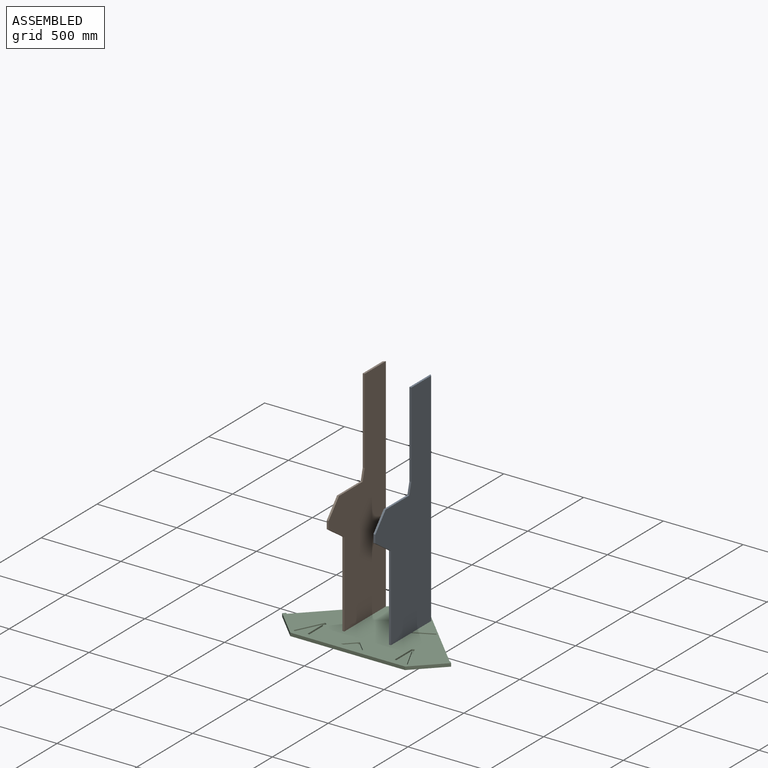
[diagram: assembled view]
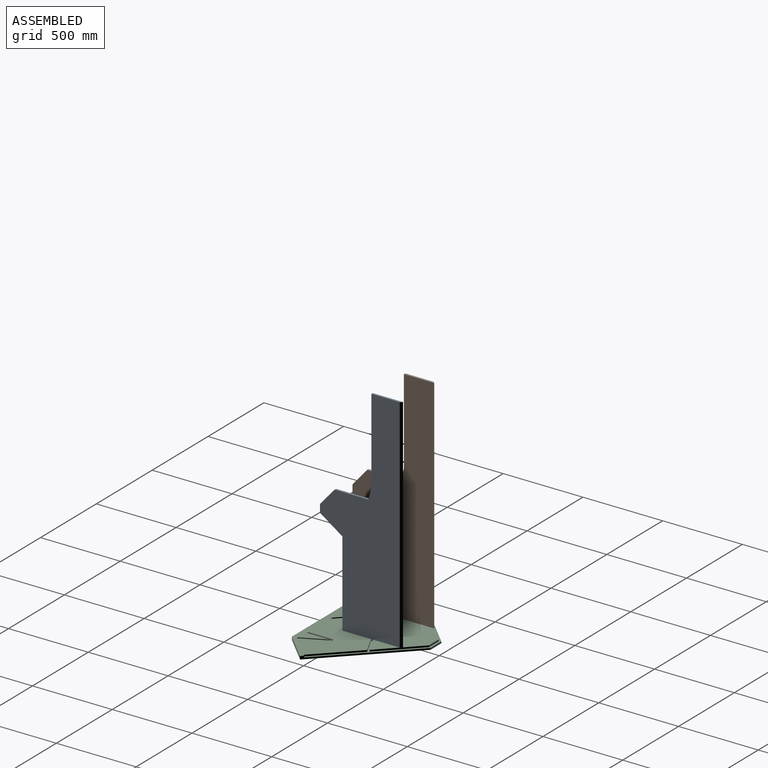
[diagram: assembled view, second angle]
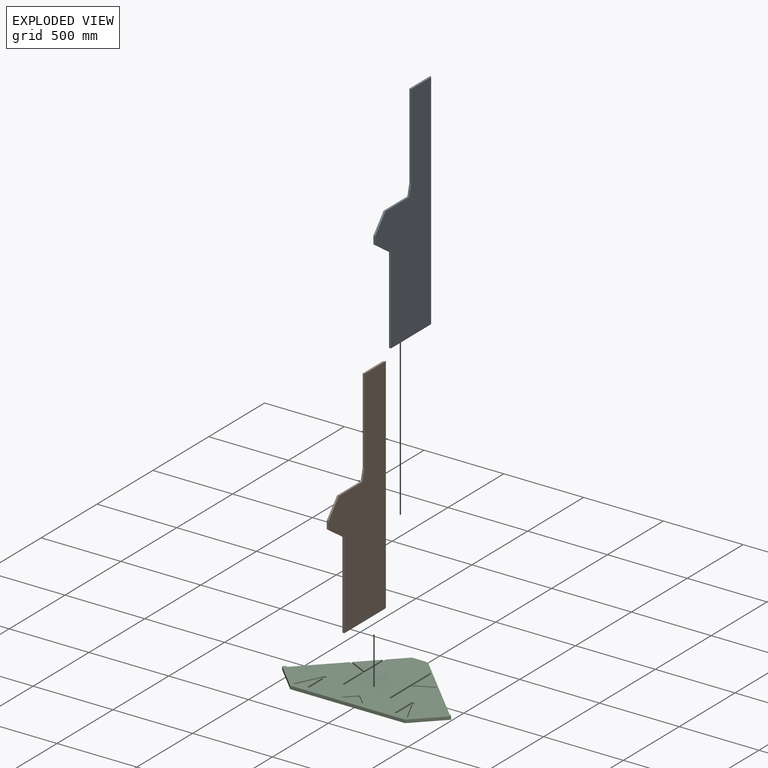
[diagram: exploded view]
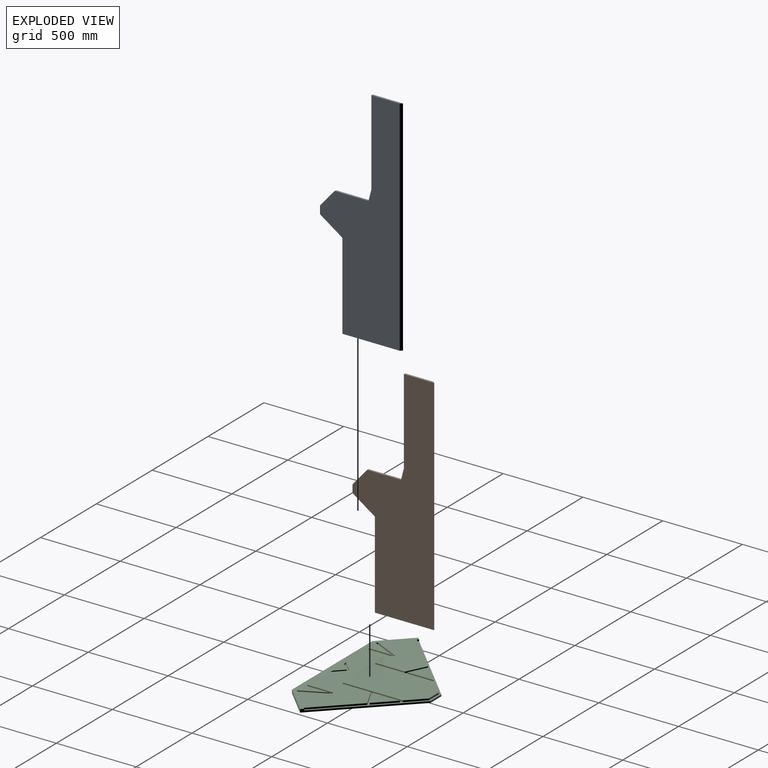
[diagram: exploded view, second angle]
ASSEMBLY  parts=3 mates=2
PART A: 12 faces, bbox 12x1400x512 mm
  f0: plane 190x12mm, normal (0,-1,0), area 2208mm2, adj f1,f9,f10,f11
  f1: plane 534x12mm, normal (0,0,-1), area 6408mm2, adj f0,f2,f9,f10
  f2: plane 70x18mm, normal (0,-0.25,-0.97), area 867.3mm2, adj f1,f3,f9,f10
  f3: plane 212x12mm, normal (0,-1,0), area 2544mm2, adj f2,f4,f9,f10
  f4: plane 106x92mm, normal (0,-0.66,-0.76), area 1684.3mm2, adj f3,f5,f9,f10
  f5: plane 50x12mm, normal (0,0,-1), area 600mm2, adj f4,f6,f9,f10
  f6: plane 140x96mm, normal (0,0.82,-0.57), area 2037mm2, adj f5,f7,f9,f10
  f7: plane 544x12mm, normal (0,0,-1), area 6528mm2, adj f6,f8,f9,f10
  f8: plane 372x12mm, normal (0,1,0), area 4392mm2, adj f7,f9,f10,f11
  f9: plane 1400x500mm, normal (1,0,0), area 418386mm2, adj f0,f1,f2,f3,f4,f5,f6,f7
  f10: plane 1400x512mm, normal (-1,0,0), area 435186mm2, adj f0,f1,f2,f3,f4,f5,f6,f7
  f11: plane 1400x12mm, normal (0.71,0,0.71), area 23758.8mm2, adj f0,f8,f9,f10
PART B: 12 faces, bbox 12x1400x512 mm
  f0: plane 70x18mm, normal (0,-0.25,0.97), area 867.3mm2, adj f1,f8,f9,f10
  f1: plane 534x12mm, normal (0,0,1), area 6408mm2, adj f0,f2,f9,f10
  f2: plane 190x12mm, normal (0,-1,0), area 2208mm2, adj f1,f9,f10,f11
  f3: plane 372x12mm, normal (0,1,0), area 4392mm2, adj f4,f9,f10,f11
  f4: plane 544x12mm, normal (0,0,1), area 6528mm2, adj f3,f5,f9,f10
  f5: plane 140x96mm, normal (0,0.82,0.57), area 2037mm2, adj f4,f6,f9,f10
  f6: plane 50x12mm, normal (0,0,1), area 600mm2, adj f5,f7,f9,f10
  f7: plane 106x92mm, normal (0,-0.66,0.76), area 1684.3mm2, adj f6,f8,f9,f10
  f8: plane 212x12mm, normal (0,-1,0), area 2544mm2, adj f0,f7,f9,f10
  f9: plane 1400x500mm, normal (1,0,0), area 418386mm2, adj f0,f1,f2,f3,f4,f5,f6,f7
  f10: plane 1400x512mm, normal (-1,0,0), area 435186mm2, adj f0,f1,f2,f3,f4,f5,f6,f7
  f11: plane 1400x12mm, normal (0.71,0,-0.71), area 23758.8mm2, adj f2,f3,f9,f10
PART C: 55 faces, bbox 1059.4x650.5x20 mm
  f0: plane 372x10mm, normal (-1,0,0), area 3720mm2, adj f1,f39,f40,f50
  f1: plane 12x10mm, normal (0,1,0), area 120mm2, adj f0,f2,f40,f50
  f2: plane 180x10mm, normal (1,0,0), area 1800mm2, adj f1,f3,f40,f50
  f3: plane 120.44x60mm, normal (0.45,0.9,0), area 1345.6mm2, adj f2,f4,f40,f50
  f4: plane 233.22x233.22mm, normal (-0.71,0.71,0), area 3298.3mm2, adj f3,f5,f40,f50
  f5: plane 10x8.49mm, normal (0.71,0.71,0), area 120mm2, adj f4,f6,f40,f50
  f6: plane 480.83x480.83mm, normal (-0.71,0.71,0), area 7020mm2, adj f5,f7,f40,f41,f49,f50
  f7: plane 169.71x169.71mm, normal (-0.71,-0.71,0), area 4800mm2, adj f6,f8,f40,f41
  f8: plane 720x20mm, normal (0,-1,0), area 14400mm2, adj f7,f9,f40,f41
  f9: plane 169.71x169.71mm, normal (0.71,-0.71,0), area 4800mm2, adj f8,f10,f40,f41
  f10: plane 480.83x480.83mm, normal (0.71,0.71,0), area 7020mm2, adj f9,f11,f40,f41,f49,f50
  f11: plane 10x8.49mm, normal (-0.71,0.71,0), area 120mm2, adj f10,f12,f40,f50
  f12: plane 233.66x233.22mm, normal (0.71,0.71,0), area 3301.4mm2, adj f11,f13,f40,f50
  f13: plane 120.44x60mm, normal (-0.45,0.9,0), area 1345.6mm2, adj f12,f14,f40,f50
  f14: plane 180x10mm, normal (-1,0,0), area 1800mm2, adj f13,f15,f40,f50
  f15: plane 12x10mm, normal (0,1,0), area 120mm2, adj f14,f16,f40,f50
  f16: plane 372x10mm, normal (1,0,0), area 3720mm2, adj f15,f17,f40,f50
  f17: plane 96.1x95.66mm, normal (0.71,0.71,0), area 1355.9mm2, adj f16,f18,f40,f50
  f18: plane 87.81x10mm, normal (0,1,0), area 878mm2, adj f17,f39,f40,f50
  f19: plane 154.39x10mm, normal (-1,0,0), area 1543.9mm2, adj f20,f36,f40,f44
  f20: plane 12x10mm, normal (0,1,0), area 120mm2, adj f19,f21,f40,f44
  f21: plane 138.78x10mm, normal (1,0,0), area 1387.8mm2, adj f20,f22,f40,f44
  f22: plane 148.78x73mm, normal (-0.9,0.44,0), area 1657.2mm2, adj f21,f23,f40,f44
  f23: plane 10.77x10mm, normal (0.44,0.9,0), area 120mm2, adj f22,f24,f40,f44
  f24: plane 166.1x81.5mm, normal (0.9,-0.44,0), area 1850.2mm2, adj f23,f36,f40,f44
  f25: plane 70x70mm, normal (-0.71,-0.71,0), area 989.9mm2, adj f26,f37,f40,f43
  f26: plane 16.97x10mm, normal (0,1,0), area 169.7mm2, adj f25,f27,f40,f43
  f27: plane 53x53mm, normal (0.71,0.71,0), area 749.5mm2, adj f26,f28,f40,f43
  f28: plane 53x53mm, normal (-0.71,0.71,0), area 749.5mm2, adj f27,f29,f40,f43
  f29: plane 17.03x10mm, normal (0,1,0), area 170.3mm2, adj f28,f37,f40,f43
  f30: plane 10.77x10mm, normal (-0.44,0.9,0), area 120mm2, adj f31,f38,f40,f42
  f31: plane 148.78x73mm, normal (0.9,0.44,0), area 1657.2mm2, adj f30,f32,f40,f42
  f32: plane 138.78x10mm, normal (-1,0,0), area 1387.8mm2, adj f31,f33,f40,f42
  f33: plane 12x10mm, normal (0,1,0), area 120mm2, adj f32,f34,f40,f42
  f34: plane 154.39x10mm, normal (1,0,0), area 1543.9mm2, adj f33,f35,f40,f42
  f35: plane 14.27x10mm, normal (0.44,-0.9,0), area 159mm2, adj f34,f38,f40,f42
  f36: plane 14.27x10mm, normal (-0.44,-0.9,0), area 159mm2, adj f19,f24,f40,f44
  f37: plane 70x70mm, normal (0.71,-0.71,0), area 989.9mm2, adj f25,f29,f40,f43
  f38: plane 166.1x81.5mm, normal (-0.9,-0.44,0), area 1850.2mm2, adj f30,f35,f40,f42
  f39: plane 96.1x96.1mm, normal (-0.71,0.71,0), area 1359mm2, adj f0,f18,f40,f50
  f40: plane 1059.41x638.1mm, normal (0,0,1), area 371697.8mm2, adj f0,f1,f2,f3,f4,f5,f6,f7
  f41: plane 1059.41x650.54mm, normal (0,0,-1), area 429187.5mm2, adj f6,f7,f8,f9,f10,f49
  f42: plane 171.39x95.77mm, normal (0,0,1), area 4016.8mm2, adj f30,f31,f32,f33,f34,f35,f38
  f43: plane 140x70mm, normal (0,0,1), area 2091mm2, adj f25,f26,f27,f28,f29,f37
  f44: plane 171.39x95.77mm, normal (0,0,1), area 4016.8mm2, adj f19,f20,f21,f22,f23,f24,f36
  f45: plane 111.49x111.49mm, normal (-0.71,0.71,0), area 1576.7mm2, adj f46,f47,f48,f50
  f46: plane 111.49x55.54mm, normal (-0.45,-0.9,0), area 1245.6mm2, adj f45,f47,f48,f50
  f47: plane 167.03x10mm, normal (1,0,0), area 1670.3mm2, adj f45,f46,f48,f50
  f48: plane 167.03x111.49mm, normal (0,0,1), area 9311.5mm2, adj f45,f46,f47
  f49: plane 97.75x10mm, normal (0,1,0), area 977.5mm2, adj f6,f10,f41,f50
  f50: plane 1028.3x480.54mm, normal (0,0,1), area 28742.1mm2, adj f0,f1,f2,f3,f4,f5,f6,f10
  f51: plane 167.03x111.49mm, normal (0,0,1), area 9311.5mm2, adj f52,f53,f54
  f52: plane 111.49x111.49mm, normal (0.71,0.71,0), area 1576.7mm2, adj f50,f51,f53,f54
  f53: plane 111.49x55.54mm, normal (0.45,-0.9,0), area 1245.6mm2, adj f50,f51,f52,f54
  f54: plane 167.03x10mm, normal (-1,0,0), area 1670.3mm2, adj f50,f51,f52,f53
PLACE A rot(axis=(-1,0,0),90deg) t=(137.83,-200.34,488.2)mm
PLACE B rot(axis=(0,-0.71,0.71),180deg) t=(-142.17,1020.72,488.2)mm
PLACE C t=(-362.17,-322.8,-9.8)mm fixed
MATE fastened B.f3 <-> C.f50  axis (0,0,-1) through (-142.17,-152.8,0.2)mm
MATE fastened A.f8 <-> C.f50  axis (0,0,-1) through (149.83,-152.36,0.2)mm
